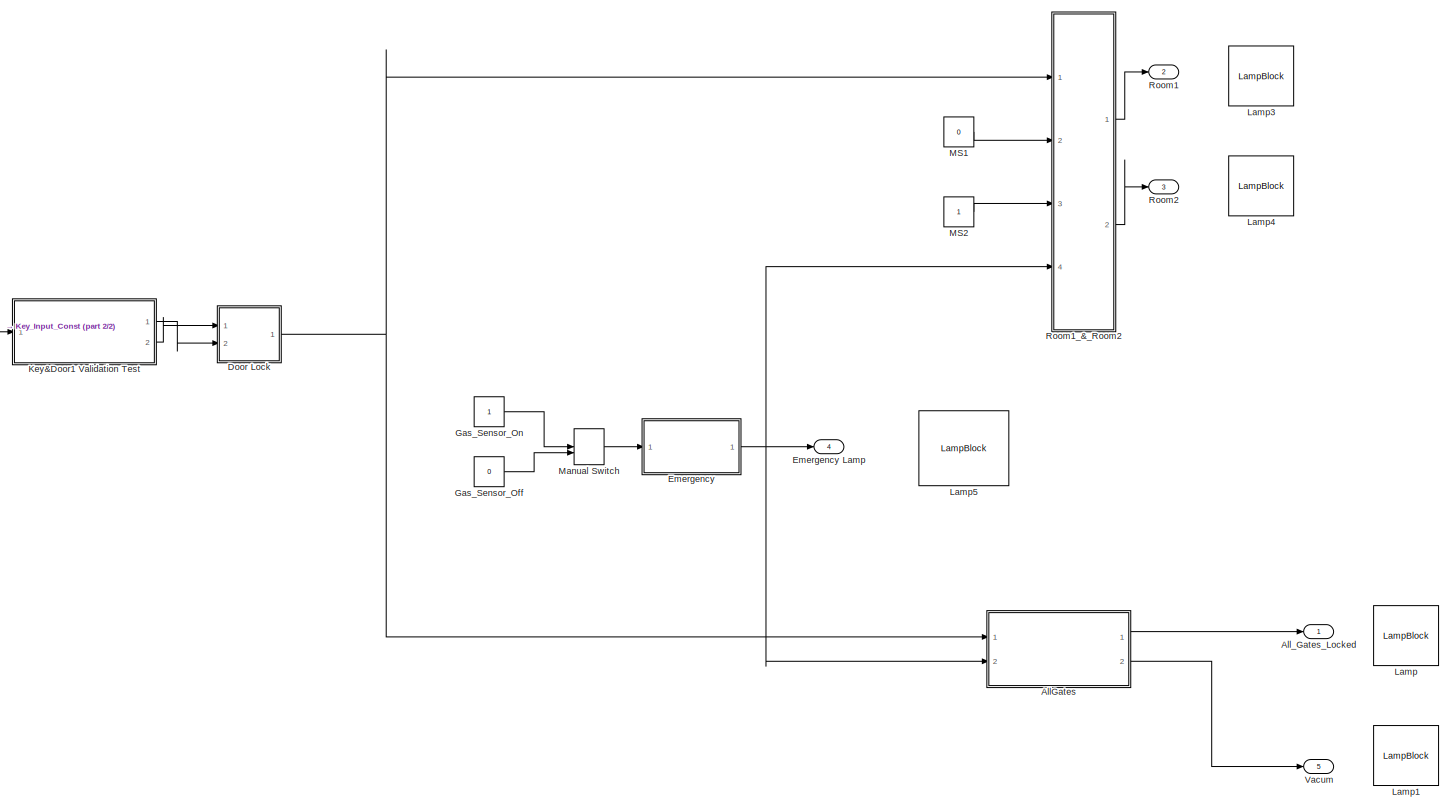
[diagram: root canvas - part 1/2, most of the canvas]
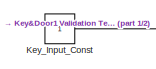
[diagram: root canvas - part 2/2, middle left region]
MODEL slx_807353c1f262
KIND model
CONFIG AbsTol = auto
CONFIG EnableMultiTasking = off
CONFIG FixedStep = auto
CONFIG MaxStep = auto
CONFIG MinStep = auto
CONFIG RelTol = 1e-3
CONFIG SampleTimeConstraint = Unconstrained
CONFIG Solver = VariableStepAuto
CONFIG SolverName = VariableStepAuto
CONFIG StartTime = 0.0
CONFIG StopTime = 10.0
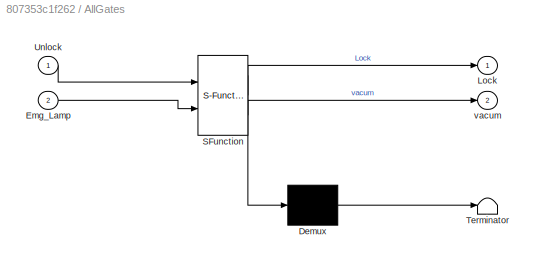
BLOCK [SubSystem] AllGates
  BlockKeywords = __PRM__SERIALIZED__DATA__:Stateflow Chart,Stateflow Diagram
  ErrorFcn = Stateflow.Translate.translate
  PermitHierarchicalResolution = ExplicitOnly
  Ports = [2, 2]
  RequestExecContextInheritance = off
  SFBlockType = Chart
  TreatAsAtomicUnit = on
BLOCK [Demux] AllGates/ Demux 
  Outputs = 1
  Ports = [1, 1]
BLOCK [S-Function] AllGates/ SFunction 
  EnableBusSupport = on
  FunctionName = sf_sfun
  PortCounts = [2 3]
  Ports = [2, 3]
  SFcnIsStateOwnerBlock = off
  SFunctionDeploymentMode = off
  Tag = Stateflow S-Function champer 2
BLOCK [Terminator] AllGates/ Terminator 
BLOCK [Inport] AllGates/Emg_Lamp
  IconDisplay = Port number
  Port = 2
BLOCK [Outport] AllGates/Lock
  IconDisplay = Port number
BLOCK [Inport] AllGates/Unlock
  IconDisplay = Port number
BLOCK [Outport] AllGates/vacum
  IconDisplay = Port number
  Port = 2
BLOCK [Outport] All_Gates_Locked
  IconDisplay = Port number
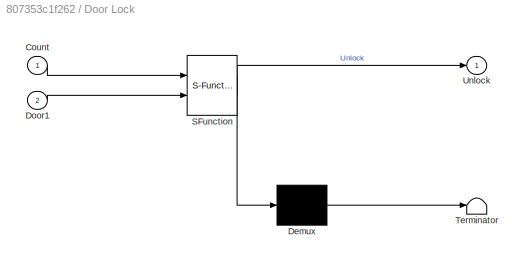
BLOCK [SubSystem] Door Lock
  BlockKeywords = __PRM__SERIALIZED__DATA__:Stateflow Chart,Stateflow Diagram
  ErrorFcn = Stateflow.Translate.translate
  PermitHierarchicalResolution = ExplicitOnly
  Ports = [2, 1]
  RequestExecContextInheritance = off
  SFBlockType = Chart
  TreatAsAtomicUnit = on
BLOCK [Demux] Door Lock/ Demux 
  Outputs = 1
  Ports = [1, 1]
BLOCK [S-Function] Door Lock/ SFunction 
  EnableBusSupport = on
  FunctionName = sf_sfun
  PortCounts = [2 2]
  Ports = [2, 2]
  SFcnIsStateOwnerBlock = off
  SFunctionDeploymentMode = off
  Tag = Stateflow S-Function champer 1
BLOCK [Terminator] Door Lock/ Terminator 
BLOCK [Inport] Door Lock/Count
  IconDisplay = Port number
BLOCK [Inport] Door Lock/Door1
  IconDisplay = Port number
  Port = 2
BLOCK [Outport] Door Lock/Unlock
  IconDisplay = Port number
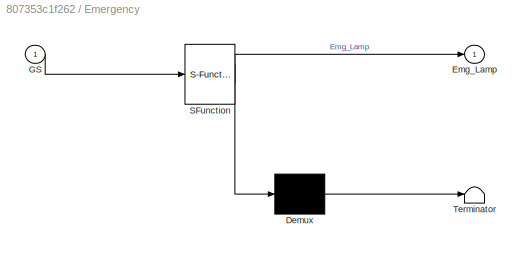
BLOCK [SubSystem] Emergency
  BlockKeywords = __PRM__SERIALIZED__DATA__:Stateflow Chart,Stateflow Diagram
  ErrorFcn = Stateflow.Translate.translate
  PermitHierarchicalResolution = ExplicitOnly
  Ports = [1, 1]
  RequestExecContextInheritance = off
  SFBlockType = Chart
  TreatAsAtomicUnit = on
BLOCK [Outport] Emergency Lamp
  IconDisplay = Port number
  Port = 4
BLOCK [Demux] Emergency/ Demux 
  Outputs = 1
  Ports = [1, 1]
BLOCK [S-Function] Emergency/ SFunction 
  EnableBusSupport = on
  FunctionName = sf_sfun
  PortCounts = [1 2]
  Ports = [1, 2]
  SFcnIsStateOwnerBlock = off
  SFunctionDeploymentMode = off
  Tag = Stateflow S-Function champer 5
BLOCK [Terminator] Emergency/ Terminator 
BLOCK [Outport] Emergency/Emg_Lamp
  IconDisplay = Port number
BLOCK [Inport] Emergency/GS
  IconDisplay = Port number
BLOCK [Constant] Gas_Sensor_Off
  OutDataTypeStr = boolean
  Value = 0
BLOCK [Constant] Gas_Sensor_On
  OutDataTypeStr = boolean
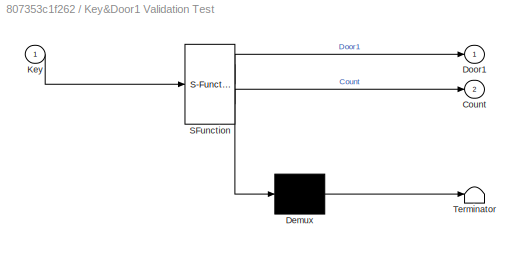
BLOCK [SubSystem] Key&Door1 Validation Test
  BlockKeywords = __PRM__SERIALIZED__DATA__:Stateflow Chart,Stateflow Diagram
  ErrorFcn = Stateflow.Translate.translate
  PermitHierarchicalResolution = ExplicitOnly
  Ports = [1, 2]
  RequestExecContextInheritance = off
  SFBlockType = Chart
  TreatAsAtomicUnit = on
BLOCK [Demux] Key&Door1 Validation Test/ Demux 
  Outputs = 1
  Ports = [1, 1]
BLOCK [S-Function] Key&Door1 Validation Test/ SFunction 
  EnableBusSupport = on
  FunctionName = sf_sfun
  PortCounts = [1 3]
  Ports = [1, 3]
  SFcnIsStateOwnerBlock = off
  SFunctionDeploymentMode = off
  Tag = Stateflow S-Function champer 3
BLOCK [Terminator] Key&Door1 Validation Test/ Terminator 
BLOCK [Outport] Key&Door1 Validation Test/Count
  IconDisplay = Port number
  Port = 2
BLOCK [Outport] Key&Door1 Validation Test/Door1
  IconDisplay = Port number
BLOCK [Inport] Key&Door1 Validation Test/Key
  IconDisplay = Port number
BLOCK [Constant] Key_Input_Const
  OutDataTypeStr = uint16
BLOCK [LampBlock] Lamp
BLOCK [LampBlock] Lamp1
BLOCK [LampBlock] Lamp3
BLOCK [LampBlock] Lamp4
BLOCK [LampBlock] Lamp5
BLOCK [Constant] MS1
  OutDataTypeStr = boolean
  Value = 0
BLOCK [Constant] MS2
  OutDataTypeStr = boolean
BLOCK [ManualSwitch] Manual Switch
  CurrentSetting = 0
BLOCK [Outport] Room1
  IconDisplay = Port number
  Port = 2
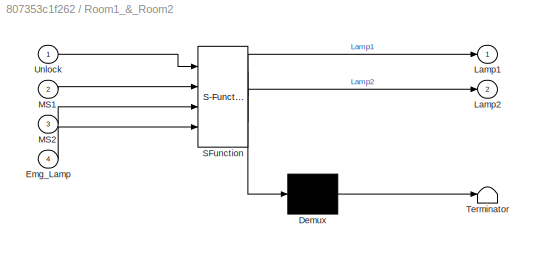
BLOCK [SubSystem] Room1_&_Room2
  BlockKeywords = __PRM__SERIALIZED__DATA__:Stateflow Chart,Stateflow Diagram
  ErrorFcn = Stateflow.Translate.translate
  PermitHierarchicalResolution = ExplicitOnly
  Ports = [4, 2]
  RequestExecContextInheritance = off
  SFBlockType = Chart
  TreatAsAtomicUnit = on
BLOCK [Demux] Room1_&_Room2/ Demux 
  Outputs = 1
  Ports = [1, 1]
BLOCK [S-Function] Room1_&_Room2/ SFunction 
  EnableBusSupport = on
  FunctionName = sf_sfun
  PortCounts = [4 3]
  Ports = [4, 3]
  SFcnIsStateOwnerBlock = off
  SFunctionDeploymentMode = off
  Tag = Stateflow S-Function champer 4
BLOCK [Terminator] Room1_&_Room2/ Terminator 
BLOCK [Inport] Room1_&_Room2/Emg_Lamp
  IconDisplay = Port number
  Port = 4
BLOCK [Outport] Room1_&_Room2/Lamp1
  IconDisplay = Port number
BLOCK [Outport] Room1_&_Room2/Lamp2
  IconDisplay = Port number
  Port = 2
BLOCK [Inport] Room1_&_Room2/MS1
  IconDisplay = Port number
  Port = 2
BLOCK [Inport] Room1_&_Room2/MS2
  IconDisplay = Port number
  Port = 3
BLOCK [Inport] Room1_&_Room2/Unlock
  IconDisplay = Port number
BLOCK [Outport] Room2
  IconDisplay = Port number
  Port = 3
BLOCK [Outport] Vacum
  IconDisplay = Port number
  Port = 5
LINE AllGates:1 -> All_Gates_Locked:1
LINE AllGates:2 -> Vacum:1
NET Door Lock:1 -> AllGates:1, Room1_&_Room2:1
NET Emergency:1 -> AllGates:2, Emergency Lamp:1, Room1_&_Room2:4
LINE Gas_Sensor_Off:1 -> Manual Switch:2
LINE Gas_Sensor_On:1 -> Manual Switch:1
LINE Key&Door1 Validation Test:1 -> Door Lock:2
LINE Key&Door1 Validation Test:2 -> Door Lock:1
LINE Key_Input_Const:1 -> Key&Door1 Validation Test:1
LINE MS1:1 -> Room1_&_Room2:2
LINE MS2:1 -> Room1_&_Room2:3
LINE Manual Switch:1 -> Emergency:1
LINE Room1_&_Room2:1 -> Room1:1
LINE Room1_&_Room2:2 -> Room2:1
note: NET lines group one-source signal fan-out (src -> all destinations, sorted); 1:1 wires keep LINE
CHART Door Lock states=0 transitions=10
CHART AllGates states=2 transitions=15
  STATE_LABEL 'Normal_Behavior\nentry:\nvacum = 0;'
  STATE_LABEL 'Close_Gates\nentry:\nvacum = 0;\n\nduring:\nvacum = 1; '
CHART Key&Door1
Validation Test states=0 transitions=10
CHART Room1_&_Room2 states=4 transitions=8
  STATE_LABEL 'TurnOn_Lamp1\nen:\nLamp1 = 1;'
  STATE_LABEL 'TurnOff_Lamp1\nen:\nLamp1 = 0;\n'
  STATE_LABEL 'TurnOn_Lamp2\nen:\nLamp2 = 1;'
  STATE_LABEL 'TurnOff_Lamp2\nen:\nLamp2 = 0;\n'
CHART Emergency states=2 transitions=4
  STATE_LABEL 'Emg_Lamp\nen:\nEmg_Lamp = 0;'
  STATE_LABEL 'Emg_Lamp_\nen:\nEmg_Lamp = 1;'
